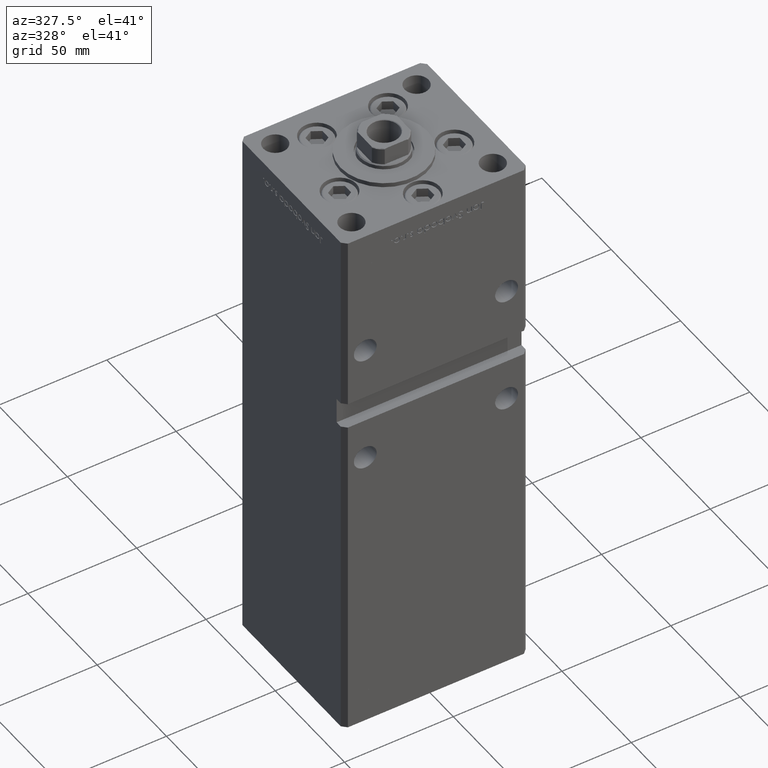
[diagram: clean part render]
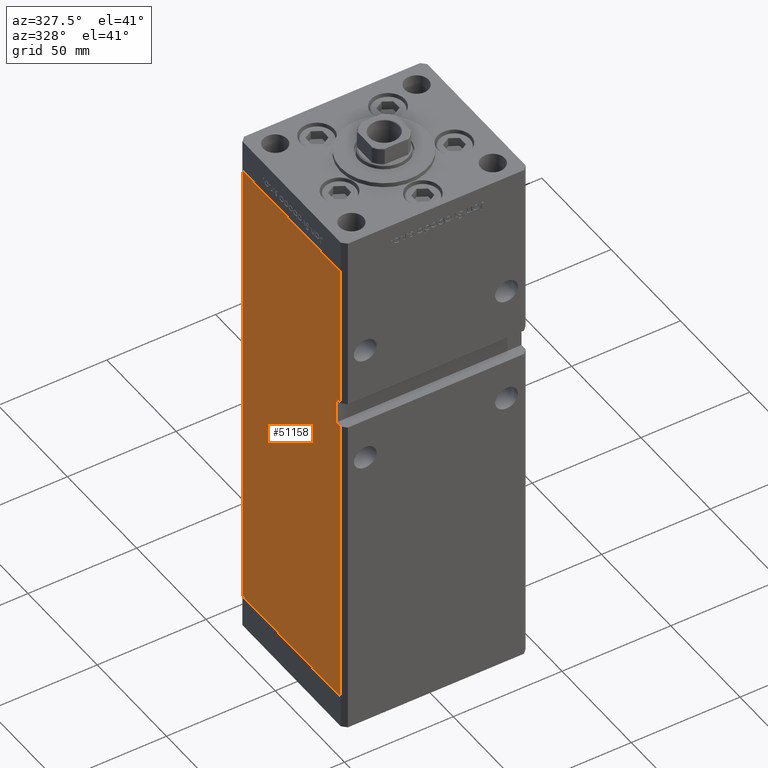
[diagram: same view with one face highlighted and labeled with its STEP entity id]
A machine part, auxiliary view. The second image highlights one B-rep face of the part: STEP entity #51158.
In plain terms, the highlighted planar face has unit normal (1, 0, 0).
Its self-contained STEP definition (entity closure, byte-faithful):
#365 = CARTESIAN_POINT ( 'NONE',  ( -42.49999999999998579, -32.50000000000000711, 151.0000000000000568 ) ) ;
#892 = CARTESIAN_POINT ( 'NONE',  ( -42.50000000000001421, 35.50000000000000711, 218.5000000000000000 ) ) ;
#1165 = CARTESIAN_POINT ( 'NONE',  ( -42.49999999999998579, -35.50000000000000711, 0.000000000000000000 ) ) ;
#1265 = CARTESIAN_POINT ( 'NONE',  ( -42.50000000000001421, 35.50000000000000711, 0.000000000000000000 ) ) ;
#1825 = EDGE_CURVE ( 'NONE', #12380, #39260, #3420, .T. ) ;
#2157 = AXIS2_PLACEMENT_3D ( 'NONE', #892, #5742, #14076 ) ;
#3420 = LINE ( 'NONE', #28424, #26960 ) ;
#4538 = VECTOR ( 'NONE', #44838, 1000.000000000000000 ) ;
#5742 = DIRECTION ( 'NONE',  ( 1.000000000000000000, 3.909236002201255146E-16, -0.000000000000000000 ) ) ;
#5777 = CARTESIAN_POINT ( 'NONE',  ( -42.50000000000001421, 35.50000000000000711, 218.5000000000000000 ) ) ;
#5830 = CARTESIAN_POINT ( 'NONE',  ( -42.50000000000001421, 35.50000000000000711, 0.000000000000000000 ) ) ;
#7357 = VECTOR ( 'NONE', #25384, 1000.000000000000000 ) ;
#7723 = CARTESIAN_POINT ( 'NONE',  ( -42.49999999999998579, -35.50000000000000711, 218.5000000000000000 ) ) ;
#7931 = LINE ( 'NONE', #16516, #7357 ) ;
#8724 = VERTEX_POINT ( 'NONE', #22355 ) ;
#8837 = CARTESIAN_POINT ( 'NONE',  ( -42.49999999999998579, -32.50000000000000711, 139.0000000000000284 ) ) ;
#9724 = EDGE_CURVE ( 'NONE', #26908, #25000, #31765, .T. ) ;
#10234 = EDGE_CURVE ( 'NONE', #44347, #12380, #32102, .T. ) ;
#12380 = VERTEX_POINT ( 'NONE', #49725 ) ;
#14076 = DIRECTION ( 'NONE',  ( -3.909236002201255146E-16, 1.000000000000000000, 0.000000000000000000 ) ) ;
#14587 = EDGE_CURVE ( 'NONE', #25000, #39260, #42708, .T. ) ;
#14750 = ORIENTED_EDGE ( 'NONE', *, *, #52451, .F. ) ;
#15117 = LINE ( 'NONE', #52254, #37439 ) ;
#15345 = CARTESIAN_POINT ( 'NONE',  ( -42.49999999999998579, -35.50000000000000711, 218.5000000000000000 ) ) ;
#16516 = CARTESIAN_POINT ( 'NONE',  ( -42.50000000000001421, 35.50000000000000711, 218.5000000000000000 ) ) ;
#17584 = VERTEX_POINT ( 'NONE', #15345 ) ;
#17853 = VERTEX_POINT ( 'NONE', #365 ) ;
#17957 = DIRECTION ( 'NONE',  ( 3.909236002201255146E-16, -1.000000000000000000, 0.000000000000000000 ) ) ;
#22355 = CARTESIAN_POINT ( 'NONE',  ( -42.49999999999998579, -35.50000000000001421, 151.0000000000000568 ) ) ;
#22732 = ORIENTED_EDGE ( 'NONE', *, *, #30580, .F. ) ;
#22888 = VECTOR ( 'NONE', #17957, 1000.000000000000000 ) ;
#23322 = LINE ( 'NONE', #7723, #4538 ) ;
#25000 = VERTEX_POINT ( 'NONE', #5830 ) ;
#25158 = ORIENTED_EDGE ( 'NONE', *, *, #14587, .T. ) ;
#25384 = DIRECTION ( 'NONE',  ( 3.909236002201255146E-16, -1.000000000000000000, 0.000000000000000000 ) ) ;
#26908 = VERTEX_POINT ( 'NONE', #5777 ) ;
#26960 = VECTOR ( 'NONE', #52919, 1000.000000000000000 ) ;
#27225 = DIRECTION ( 'NONE',  ( -5.782411586589351722E-16, 0.000000000000000000, -1.000000000000000000 ) ) ;
#27757 = LINE ( 'NONE', #39865, #39870 ) ;
#28296 = DIRECTION ( 'NONE',  ( -0.000000000000000000, -1.000000000000000000, -0.000000000000000000 ) ) ;
#28424 = CARTESIAN_POINT ( 'NONE',  ( -42.49999999999998579, -35.50000000000000711, 218.5000000000000000 ) ) ;
#30580 = EDGE_CURVE ( 'NONE', #17584, #8724, #23322, .T. ) ;
#31765 = LINE ( 'NONE', #44686, #52014 ) ;
#32102 = LINE ( 'NONE', #48526, #44258 ) ;
#33087 = EDGE_CURVE ( 'NONE', #17853, #8724, #27757, .T. ) ;
#33206 = EDGE_LOOP ( 'NONE', ( #35129, #34931, #14750, #35921, #22732, #33287, #47487, #25158 ) ) ;
#33287 = ORIENTED_EDGE ( 'NONE', *, *, #51031, .F. ) ;
#34931 = ORIENTED_EDGE ( 'NONE', *, *, #10234, .F. ) ;
#35129 = ORIENTED_EDGE ( 'NONE', *, *, #1825, .F. ) ;
#35921 = ORIENTED_EDGE ( 'NONE', *, *, #33087, .T. ) ;
#36070 = DIRECTION ( 'NONE',  ( -0.000000000000000000, -0.000000000000000000, -1.000000000000000000 ) ) ;
#36675 = DIRECTION ( 'NONE',  ( -0.000000000000000000, -1.000000000000000000, -0.000000000000000000 ) ) ;
#37439 = VECTOR ( 'NONE', #27225, 1000.000000000000000 ) ;
#38270 = FACE_OUTER_BOUND ( 'NONE', #33206, .T. ) ;
#39260 = VERTEX_POINT ( 'NONE', #1165 ) ;
#39865 = CARTESIAN_POINT ( 'NONE',  ( -42.49999999999998579, -32.50000000000000711, 151.0000000000000568 ) ) ;
#39870 = VECTOR ( 'NONE', #28296, 1000.000000000000000 ) ;
#42708 = LINE ( 'NONE', #1265, #22888 ) ;
#42870 = PLANE ( 'NONE',  #2157 ) ;
#44258 = VECTOR ( 'NONE', #36675, 1000.000000000000000 ) ;
#44347 = VERTEX_POINT ( 'NONE', #8837 ) ;
#44686 = CARTESIAN_POINT ( 'NONE',  ( -42.50000000000001421, 35.50000000000000711, 218.5000000000000000 ) ) ;
#44838 = DIRECTION ( 'NONE',  ( -0.000000000000000000, -0.000000000000000000, -1.000000000000000000 ) ) ;
#47487 = ORIENTED_EDGE ( 'NONE', *, *, #9724, .T. ) ;
#48526 = CARTESIAN_POINT ( 'NONE',  ( -42.49999999999998579, -32.50000000000000711, 139.0000000000000284 ) ) ;
#49725 = CARTESIAN_POINT ( 'NONE',  ( -42.49999999999998579, -35.49999999999996447, 139.0000000000000284 ) ) ;
#51031 = EDGE_CURVE ( 'NONE', #26908, #17584, #7931, .T. ) ;
#51158 = ADVANCED_FACE ( 'NONE', ( #38270 ), #42870, .F. ) ;
#52014 = VECTOR ( 'NONE', #36070, 1000.000000000000000 ) ;
#52254 = CARTESIAN_POINT ( 'NONE',  ( -42.49999999999998579, -32.50000000000000711, 151.0000000000000568 ) ) ;
#52451 = EDGE_CURVE ( 'NONE', #17853, #44347, #15117, .T. ) ;
#52919 = DIRECTION ( 'NONE',  ( -0.000000000000000000, -0.000000000000000000, -1.000000000000000000 ) ) ;